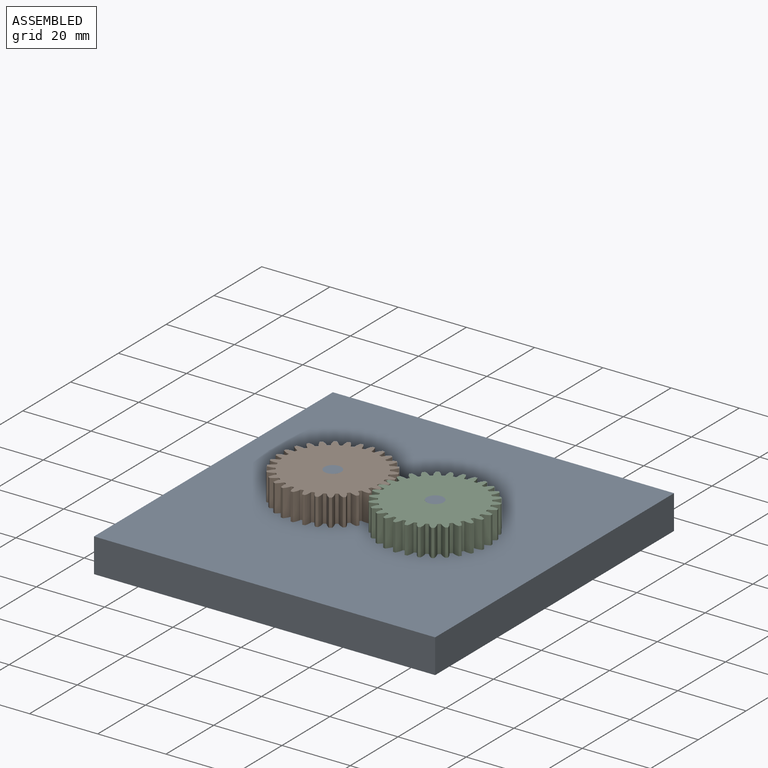
[diagram: assembled view]
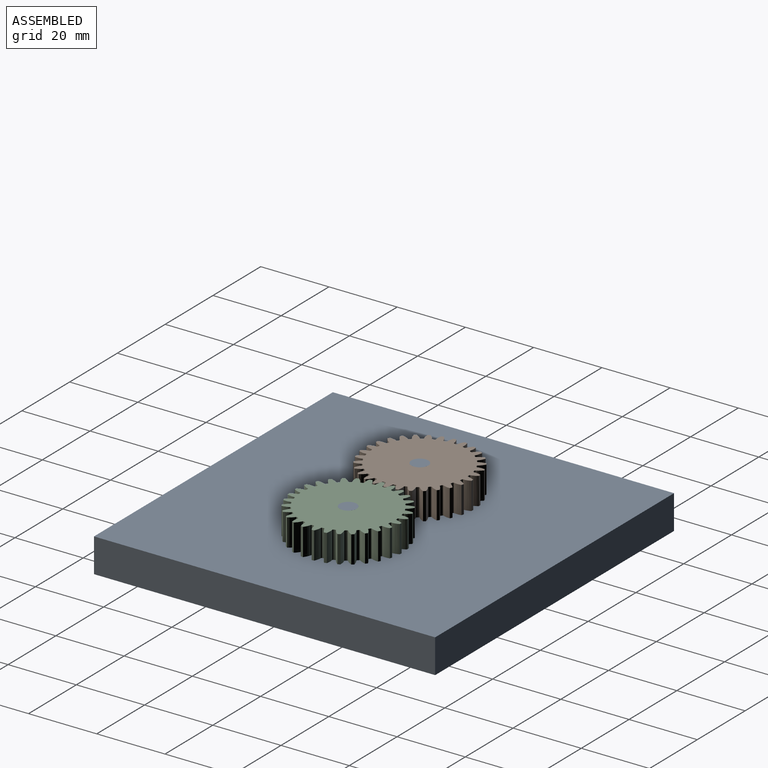
[diagram: assembled view, second angle]
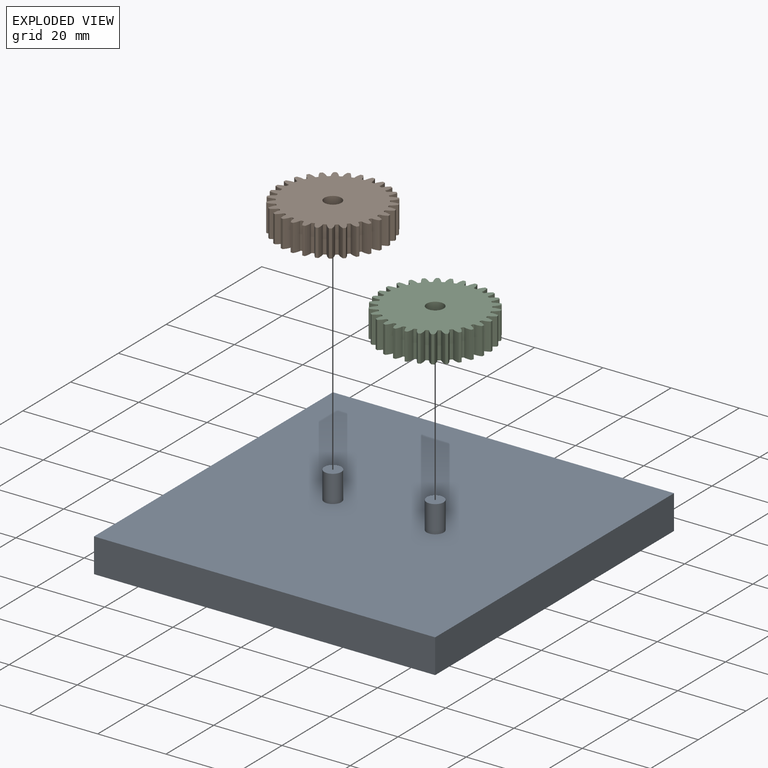
[diagram: exploded view]
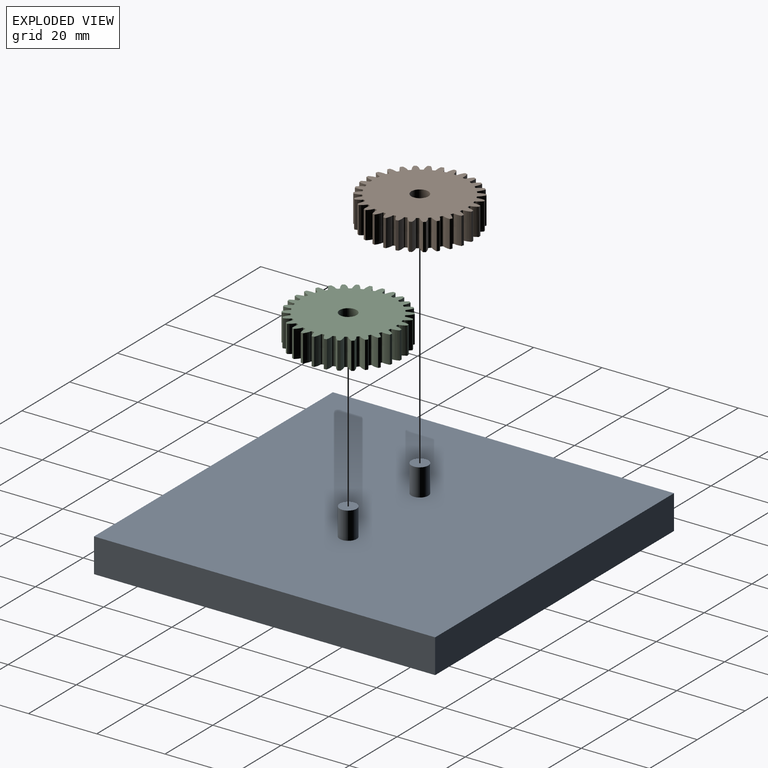
[diagram: exploded view, second angle]
ASSEMBLY  parts=3 mates=2
PART A: 10 faces, bbox 100x100x18 mm
  f0: plane 100x10mm, normal (-1,0,0), area 1000mm2, adj f1,f3,f4,f5
  f1: plane 100x10mm, normal (0,-1,0), area 1000mm2, adj f0,f2,f4,f5
  f2: plane 100x10mm, normal (1,0,0), area 1000mm2, adj f1,f3,f4,f5
  f3: plane 100x10mm, normal (0,1,0), area 1000mm2, adj f0,f2,f4,f5
  f4: plane 100x100mm, normal (0,0,1), area 9960.7mm2, adj f0,f1,f2,f3,f6,f8
  f5: plane 100x100mm, normal (0,0,-1), area 10000mm2, adj f0,f1,f2,f3
  f6: cylinder r=2.5mm len=8mm, axis (0,0,-1), area 125.7mm2, adj f4,f7
  f7: plane 5x5mm, normal (0,0,1), area 19.6mm2, adj f6
  f8: cylinder r=2.5mm len=8mm, axis (0,0,-1), area 125.7mm2, adj f4,f9
  f9: plane 5x5mm, normal (0,0,1), area 19.6mm2, adj f8
PART B: 183 faces, bbox 32x8x32 mm
  f0: extruded ~8x2.01mm, area 16.4mm2, adj f120,f121,f122,f123
  f1: cylinder r=13.75mm len=8mm, axis (0,1,0), area 2.9mm2, adj f121,f122,f123,f124
  f2: extruded ~8x1.61mm, area 16.4mm2, adj f3,f121,f122,f124
  f3: cylinder r=16mm len=8mm, axis (0,1,0), area 5.9mm2, adj f2,f4,f121,f122
  f4: extruded ~8x2.02mm, area 16.4mm2, adj f3,f121,f122,f125
  f5: cylinder r=13.75mm len=8mm, axis (0,1,0), area 2.9mm2, adj f121,f122,f125,f126
  f6: extruded ~8x1.54mm, area 16.4mm2, adj f7,f121,f122,f126
  f7: cylinder r=16mm len=8mm, axis (0,1,0), area 5.9mm2, adj f6,f8,f121,f122
  f8: extruded ~8x1.95mm, area 16.4mm2, adj f7,f121,f122,f127
  f9: cylinder r=13.75mm len=8mm, axis (0,1,0), area 2.9mm2, adj f121,f122,f127,f128
  f10: extruded ~8x1.78mm, area 16.4mm2, adj f11,f121,f122,f128
  f11: cylinder r=16mm len=8mm, axis (0,1,0), area 5.9mm2, adj f10,f12,f121,f122
  f12: extruded ~8x1.78mm, area 16.4mm2, adj f11,f121,f122,f129
  f13: cylinder r=13.75mm len=8mm, axis (0,1,0), area 2.9mm2, adj f121,f122,f129,f130
  f14: extruded ~8x1.95mm, area 16.4mm2, adj f15,f121,f122,f130
  f15: cylinder r=16mm len=8mm, axis (0,1,0), area 5.9mm2, adj f14,f16,f121,f122
  f16: extruded ~8x1.54mm, area 16.4mm2, adj f15,f121,f122,f131
  f17: cylinder r=13.75mm len=8mm, axis (0,1,0), area 2.9mm2, adj f121,f122,f131,f132
  f18: extruded ~8x2.02mm, area 16.4mm2, adj f19,f121,f122,f132
  f19: cylinder r=16mm len=8mm, axis (0,1,0), area 5.9mm2, adj f18,f20,f121,f122
  f20: extruded ~8x1.61mm, area 16.4mm2, adj f19,f121,f122,f133
  f21: cylinder r=13.75mm len=8mm, axis (0,1,0), area 2.9mm2, adj f121,f122,f133,f134
  f22: extruded ~8x2.01mm, area 16.4mm2, adj f23,f121,f122,f134
  f23: cylinder r=16mm len=8mm, axis (0,1,0), area 5.9mm2, adj f22,f24,f121,f122
  f24: extruded ~8x1.83mm, area 16.4mm2, adj f23,f121,f122,f135
  f25: cylinder r=13.75mm len=8mm, axis (0,1,0), area 2.9mm2, adj f121,f122,f135,f136
  f26: extruded ~8x1.91mm, area 16.4mm2, adj f27,f121,f122,f136
  f27: cylinder r=16mm len=8mm, axis (0,1,0), area 5.9mm2, adj f26,f28,f121,f122
  f28: extruded ~8x1.97mm, area 16.4mm2, adj f27,f121,f122,f137
  f29: cylinder r=13.75mm len=8mm, axis (0,1,0), area 2.9mm2, adj f121,f122,f137,f138
  f30: extruded ~8x1.73mm, area 16.4mm2, adj f31,f121,f122,f138
  f31: cylinder r=16mm len=8mm, axis (0,1,0), area 5.9mm2, adj f30,f32,f121,f122
  f32: extruded ~8x2.03mm, area 16.4mm2, adj f31,f121,f122,f139
  f33: cylinder r=13.75mm len=8mm, axis (0,1,0), area 2.9mm2, adj f121,f122,f139,f140
  f34: extruded ~8x1.47mm, area 16.4mm2, adj f35,f121,f122,f140
  f35: cylinder r=16mm len=8mm, axis (0,1,0), area 5.9mm2, adj f34,f36,f121,f122
  f36: extruded ~8x2mm, area 16.4mm2, adj f35,f121,f122,f141
  f37: cylinder r=13.75mm len=8mm, axis (0,1,0), area 2.9mm2, adj f121,f122,f141,f142
  f38: extruded ~8x1.67mm, area 16.4mm2, adj f39,f121,f122,f142
  f39: cylinder r=16mm len=8mm, axis (0,1,0), area 5.9mm2, adj f38,f40,f121,f122
  f40: extruded ~8x1.88mm, area 16.4mm2, adj f39,f121,f122,f143
  f41: cylinder r=13.75mm len=8mm, axis (0,1,0), area 2.9mm2, adj f121,f122,f143,f144
  f42: extruded ~8x1.88mm, area 16.4mm2, adj f43,f121,f122,f144
  f43: cylinder r=16mm len=8mm, axis (0,1,0), area 5.9mm2, adj f42,f44,f121,f122
  f44: extruded ~8x1.67mm, area 16.4mm2, adj f43,f121,f122,f145
  f45: cylinder r=13.75mm len=8mm, axis (0,1,0), area 2.9mm2, adj f121,f122,f145,f146
  f46: extruded ~8x2mm, area 16.4mm2, adj f47,f121,f122,f146
  f47: cylinder r=16mm len=8mm, axis (0,1,0), area 5.9mm2, adj f46,f48,f121,f122
  f48: extruded ~8x1.47mm, area 16.4mm2, adj f47,f121,f122,f147
  f49: cylinder r=13.75mm len=8mm, axis (0,1,0), area 2.9mm2, adj f121,f122,f147,f148
  f50: extruded ~8x2.03mm, area 16.4mm2, adj f51,f121,f122,f148
  f51: cylinder r=16mm len=8mm, axis (0,1,0), area 5.9mm2, adj f50,f52,f121,f122
  f52: extruded ~8x1.73mm, area 16.4mm2, adj f51,f121,f122,f149
  f53: cylinder r=13.75mm len=8mm, axis (0,1,0), area 2.9mm2, adj f121,f122,f149,f150
  f54: extruded ~8x1.97mm, area 16.4mm2, adj f55,f121,f122,f150
  f55: cylinder r=16mm len=8mm, axis (0,1,0), area 5.9mm2, adj f54,f56,f121,f122
  f56: extruded ~8x1.91mm, area 16.4mm2, adj f55,f121,f122,f151
  f57: cylinder r=13.75mm len=8mm, axis (0,1,0), area 2.9mm2, adj f121,f122,f151,f152
  f58: extruded ~8x1.83mm, area 16.4mm2, adj f59,f121,f122,f152
  f59: cylinder r=16mm len=8mm, axis (0,1,0), area 5.9mm2, adj f58,f60,f121,f122
  f60: extruded ~8x2.01mm, area 16.4mm2, adj f59,f121,f122,f153
  f61: cylinder r=13.75mm len=8mm, axis (0,1,0), area 2.9mm2, adj f121,f122,f153,f154
  f62: extruded ~8x1.61mm, area 16.4mm2, adj f63,f121,f122,f154
  f63: cylinder r=16mm len=8mm, axis (0,1,0), area 5.9mm2, adj f62,f64,f121,f122
  f64: extruded ~8x2.02mm, area 16.4mm2, adj f63,f121,f122,f155
  f65: cylinder r=13.75mm len=8mm, axis (0,1,0), area 2.9mm2, adj f121,f122,f155,f156
  f66: extruded ~8x1.54mm, area 16.4mm2, adj f67,f121,f122,f156
  f67: cylinder r=16mm len=8mm, axis (0,1,0), area 5.9mm2, adj f66,f68,f121,f122
  f68: extruded ~8x1.95mm, area 16.4mm2, adj f67,f121,f122,f157
  f69: cylinder r=13.75mm len=8mm, axis (0,1,0), area 2.9mm2, adj f121,f122,f157,f158
  f70: extruded ~8x1.78mm, area 16.4mm2, adj f71,f121,f122,f158
  f71: cylinder r=16mm len=8mm, axis (0,1,0), area 5.9mm2, adj f70,f72,f121,f122
  f72: extruded ~8x1.78mm, area 16.4mm2, adj f71,f121,f122,f159
  f73: cylinder r=13.75mm len=8mm, axis (0,1,0), area 2.9mm2, adj f121,f122,f159,f160
  f74: extruded ~8x1.95mm, area 16.4mm2, adj f75,f121,f122,f160
  f75: cylinder r=16mm len=8mm, axis (0,1,0), area 5.9mm2, adj f74,f76,f121,f122
  f76: extruded ~8x1.54mm, area 16.4mm2, adj f75,f121,f122,f161
  f77: cylinder r=13.75mm len=8mm, axis (0,1,0), area 2.9mm2, adj f121,f122,f161,f162
  f78: extruded ~8x2.02mm, area 16.4mm2, adj f79,f121,f122,f162
  f79: cylinder r=16mm len=8mm, axis (0,1,0), area 5.9mm2, adj f78,f80,f121,f122
  f80: extruded ~8x1.61mm, area 16.4mm2, adj f79,f121,f122,f163
  f81: cylinder r=13.75mm len=8mm, axis (0,1,0), area 2.9mm2, adj f121,f122,f163,f164
  f82: extruded ~8x2.01mm, area 16.4mm2, adj f83,f121,f122,f164
  f83: cylinder r=16mm len=8mm, axis (0,1,0), area 5.9mm2, adj f82,f84,f121,f122
  f84: extruded ~8x1.83mm, area 16.4mm2, adj f83,f121,f122,f165
  f85: cylinder r=13.75mm len=8mm, axis (0,1,0), area 2.9mm2, adj f121,f122,f165,f166
  f86: extruded ~8x1.91mm, area 16.4mm2, adj f87,f121,f122,f166
  f87: cylinder r=16mm len=8mm, axis (0,1,0), area 5.9mm2, adj f86,f88,f121,f122
  f88: extruded ~8x1.97mm, area 16.4mm2, adj f87,f121,f122,f167
  f89: cylinder r=13.75mm len=8mm, axis (0,1,0), area 2.9mm2, adj f121,f122,f167,f168
  f90: extruded ~8x1.73mm, area 16.4mm2, adj f91,f121,f122,f168
  f91: cylinder r=16mm len=8mm, axis (0,1,0), area 5.9mm2, adj f90,f92,f121,f122
  f92: extruded ~8x2.03mm, area 16.4mm2, adj f91,f121,f122,f169
  f93: cylinder r=13.75mm len=8mm, axis (0,1,0), area 2.9mm2, adj f121,f122,f169,f170
  f94: extruded ~8x1.47mm, area 16.4mm2, adj f95,f121,f122,f170
  f95: cylinder r=16mm len=8mm, axis (0,1,0), area 5.9mm2, adj f94,f96,f121,f122
  f96: extruded ~8x2mm, area 16.4mm2, adj f95,f121,f122,f171
  f97: cylinder r=13.75mm len=8mm, axis (0,1,0), area 2.9mm2, adj f121,f122,f171,f172
  f98: extruded ~8x1.67mm, area 16.4mm2, adj f99,f121,f122,f172
  f99: cylinder r=16mm len=8mm, axis (0,1,0), area 5.9mm2, adj f98,f100,f121,f122
  f100: extruded ~8x1.88mm, area 16.4mm2, adj f99,f121,f122,f173
  f101: cylinder r=13.75mm len=8mm, axis (0,1,0), area 2.9mm2, adj f121,f122,f173,f174
  f102: extruded ~8x1.88mm, area 16.4mm2, adj f103,f121,f122,f174
  f103: cylinder r=16mm len=8mm, axis (0,1,0), area 5.9mm2, adj f102,f104,f121,f122
  f104: extruded ~8x1.67mm, area 16.4mm2, adj f103,f121,f122,f175
  f105: cylinder r=13.75mm len=8mm, axis (0,1,0), area 2.9mm2, adj f121,f122,f175,f176
  f106: extruded ~8x2mm, area 16.4mm2, adj f107,f121,f122,f176
  f107: cylinder r=16mm len=8mm, axis (0,1,0), area 5.9mm2, adj f106,f108,f121,f122
  f108: extruded ~8x1.47mm, area 16.4mm2, adj f107,f121,f122,f177
  f109: cylinder r=13.75mm len=8mm, axis (0,1,0), area 2.9mm2, adj f121,f122,f177,f178
  f110: extruded ~8x2.03mm, area 16.4mm2, adj f111,f121,f122,f178
  f111: cylinder r=16mm len=8mm, axis (0,1,0), area 5.9mm2, adj f110,f112,f121,f122
  f112: extruded ~8x1.73mm, area 16.4mm2, adj f111,f121,f122,f179
  f113: cylinder r=13.75mm len=8mm, axis (0,1,0), area 2.9mm2, adj f121,f122,f179,f180
  f114: extruded ~8x1.97mm, area 16.4mm2, adj f115,f121,f122,f180
  f115: cylinder r=16mm len=8mm, axis (0,1,0), area 5.9mm2, adj f114,f116,f121,f122
  f116: extruded ~8x1.91mm, area 16.4mm2, adj f115,f121,f122,f181
  f117: cylinder r=13.75mm len=8mm, axis (0,1,0), area 2.9mm2, adj f121,f122,f181,f182
  f118: extruded ~8x1.83mm, area 16.4mm2, adj f120,f121,f122,f182
  f119: cylinder r=2.5mm len=8mm, axis (0,1,0), area 125.7mm2, adj f121,f122
  f120: cylinder r=16mm len=8mm, axis (0,1,0), area 5.9mm2, adj f0,f118,f121,f122
  f121: plane 31.99x31.99mm, normal (0,-1,0), area 679.1mm2, adj f0,f1,f2,f3,f4,f5,f6,f7
  f122: plane 31.99x31.99mm, normal (0,1,0), area 679.1mm2, adj f0,f1,f2,f3,f4,f5,f6,f7
  f123: cylinder r=0.34mm len=8mm, axis (0,1,0), area 4.2mm2, adj f0,f1,f121,f122
  f124: cylinder r=0.34mm len=8mm, axis (0,1,0), area 4.2mm2, adj f1,f2,f121,f122
  f125: cylinder r=0.34mm len=8mm, axis (0,1,0), area 4.2mm2, adj f4,f5,f121,f122
  f126: cylinder r=0.34mm len=8mm, axis (0,1,0), area 4.2mm2, adj f5,f6,f121,f122
  f127: cylinder r=0.34mm len=8mm, axis (0,1,0), area 4.2mm2, adj f8,f9,f121,f122
  f128: cylinder r=0.34mm len=8mm, axis (0,1,0), area 4.2mm2, adj f9,f10,f121,f122
  f129: cylinder r=0.34mm len=8mm, axis (0,1,0), area 4.2mm2, adj f12,f13,f121,f122
  f130: cylinder r=0.34mm len=8mm, axis (0,1,0), area 4.2mm2, adj f13,f14,f121,f122
  f131: cylinder r=0.34mm len=8mm, axis (0,1,0), area 4.2mm2, adj f16,f17,f121,f122
  f132: cylinder r=0.34mm len=8mm, axis (0,1,0), area 4.2mm2, adj f17,f18,f121,f122
  f133: cylinder r=0.34mm len=8mm, axis (0,1,0), area 4.2mm2, adj f20,f21,f121,f122
  f134: cylinder r=0.34mm len=8mm, axis (0,1,0), area 4.2mm2, adj f21,f22,f121,f122
  f135: cylinder r=0.34mm len=8mm, axis (0,1,0), area 4.2mm2, adj f24,f25,f121,f122
  f136: cylinder r=0.34mm len=8mm, axis (0,1,0), area 4.2mm2, adj f25,f26,f121,f122
  f137: cylinder r=0.34mm len=8mm, axis (0,1,0), area 4.2mm2, adj f28,f29,f121,f122
  f138: cylinder r=0.34mm len=8mm, axis (0,1,0), area 4.2mm2, adj f29,f30,f121,f122
  f139: cylinder r=0.34mm len=8mm, axis (0,1,0), area 4.2mm2, adj f32,f33,f121,f122
  f140: cylinder r=0.34mm len=8mm, axis (0,1,0), area 4.2mm2, adj f33,f34,f121,f122
  f141: cylinder r=0.34mm len=8mm, axis (0,1,0), area 4.2mm2, adj f36,f37,f121,f122
  f142: cylinder r=0.34mm len=8mm, axis (0,1,0), area 4.2mm2, adj f37,f38,f121,f122
  f143: cylinder r=0.34mm len=8mm, axis (0,1,0), area 4.2mm2, adj f40,f41,f121,f122
  f144: cylinder r=0.34mm len=8mm, axis (0,1,0), area 4.2mm2, adj f41,f42,f121,f122
  f145: cylinder r=0.34mm len=8mm, axis (0,1,0), area 4.2mm2, adj f44,f45,f121,f122
  f146: cylinder r=0.34mm len=8mm, axis (0,1,0), area 4.2mm2, adj f45,f46,f121,f122
  f147: cylinder r=0.34mm len=8mm, axis (0,1,0), area 4.2mm2, adj f48,f49,f121,f122
  f148: cylinder r=0.34mm len=8mm, axis (0,1,0), area 4.2mm2, adj f49,f50,f121,f122
  f149: cylinder r=0.34mm len=8mm, axis (0,1,0), area 4.2mm2, adj f52,f53,f121,f122
  f150: cylinder r=0.34mm len=8mm, axis (0,1,0), area 4.2mm2, adj f53,f54,f121,f122
  f151: cylinder r=0.34mm len=8mm, axis (0,1,0), area 4.2mm2, adj f56,f57,f121,f122
  f152: cylinder r=0.34mm len=8mm, axis (0,1,0), area 4.2mm2, adj f57,f58,f121,f122
  f153: cylinder r=0.34mm len=8mm, axis (0,1,0), area 4.2mm2, adj f60,f61,f121,f122
  f154: cylinder r=0.34mm len=8mm, axis (0,1,0), area 4.2mm2, adj f61,f62,f121,f122
  f155: cylinder r=0.34mm len=8mm, axis (0,1,0), area 4.2mm2, adj f64,f65,f121,f122
  f156: cylinder r=0.34mm len=8mm, axis (0,1,0), area 4.2mm2, adj f65,f66,f121,f122
  f157: cylinder r=0.34mm len=8mm, axis (0,1,0), area 4.2mm2, adj f68,f69,f121,f122
  f158: cylinder r=0.34mm len=8mm, axis (0,1,0), area 4.2mm2, adj f69,f70,f121,f122
  f159: cylinder r=0.34mm len=8mm, axis (0,1,0), area 4.2mm2, adj f72,f73,f121,f122
  f160: cylinder r=0.34mm len=8mm, axis (0,1,0), area 4.2mm2, adj f73,f74,f121,f122
  f161: cylinder r=0.34mm len=8mm, axis (0,1,0), area 4.2mm2, adj f76,f77,f121,f122
  f162: cylinder r=0.34mm len=8mm, axis (0,1,0), area 4.2mm2, adj f77,f78,f121,f122
  f163: cylinder r=0.34mm len=8mm, axis (0,1,0), area 4.2mm2, adj f80,f81,f121,f122
  f164: cylinder r=0.34mm len=8mm, axis (0,1,0), area 4.2mm2, adj f81,f82,f121,f122
  f165: cylinder r=0.34mm len=8mm, axis (0,1,0), area 4.2mm2, adj f84,f85,f121,f122
  f166: cylinder r=0.34mm len=8mm, axis (0,1,0), area 4.2mm2, adj f85,f86,f121,f122
  f167: cylinder r=0.34mm len=8mm, axis (0,1,0), area 4.2mm2, adj f88,f89,f121,f122
  f168: cylinder r=0.34mm len=8mm, axis (0,1,0), area 4.2mm2, adj f89,f90,f121,f122
  f169: cylinder r=0.34mm len=8mm, axis (0,1,0), area 4.2mm2, adj f92,f93,f121,f122
  f170: cylinder r=0.34mm len=8mm, axis (0,1,0), area 4.2mm2, adj f93,f94,f121,f122
  f171: cylinder r=0.34mm len=8mm, axis (0,1,0), area 4.2mm2, adj f96,f97,f121,f122
  f172: cylinder r=0.34mm len=8mm, axis (0,1,0), area 4.2mm2, adj f97,f98,f121,f122
  f173: cylinder r=0.34mm len=8mm, axis (0,1,0), area 4.2mm2, adj f100,f101,f121,f122
  f174: cylinder r=0.34mm len=8mm, axis (0,1,0), area 4.2mm2, adj f101,f102,f121,f122
  f175: cylinder r=0.34mm len=8mm, axis (0,1,0), area 4.2mm2, adj f104,f105,f121,f122
  f176: cylinder r=0.34mm len=8mm, axis (0,1,0), area 4.2mm2, adj f105,f106,f121,f122
  f177: cylinder r=0.34mm len=8mm, axis (0,1,0), area 4.2mm2, adj f108,f109,f121,f122
  f178: cylinder r=0.34mm len=8mm, axis (0,1,0), area 4.2mm2, adj f109,f110,f121,f122
  f179: cylinder r=0.34mm len=8mm, axis (0,1,0), area 4.2mm2, adj f112,f113,f121,f122
  f180: cylinder r=0.34mm len=8mm, axis (0,1,0), area 4.2mm2, adj f113,f114,f121,f122
  f181: cylinder r=0.34mm len=8mm, axis (0,1,0), area 4.2mm2, adj f116,f117,f121,f122
  f182: cylinder r=0.34mm len=8mm, axis (0,1,0), area 4.2mm2, adj f117,f118,f121,f122
PART C: same geometry as B
PLACE A t=(-0.16,0.06,-9.77)mm fixed
PLACE B rot(axis=(-0.58,-0.58,0.58),120deg) t=(-15.16,0.06,0.23)mm
PLACE C rot(axis=(-0.58,-0.58,0.58),120deg) t=(14.84,0.06,0.23)mm
MATE revolute C.f3 <-> A.f8  axis (0,0,-1) through (14.84,0.06,0.23)mm
MATE revolute B.f3 <-> A.f6  axis (0,0,-1) through (-15.16,0.06,0.23)mm
